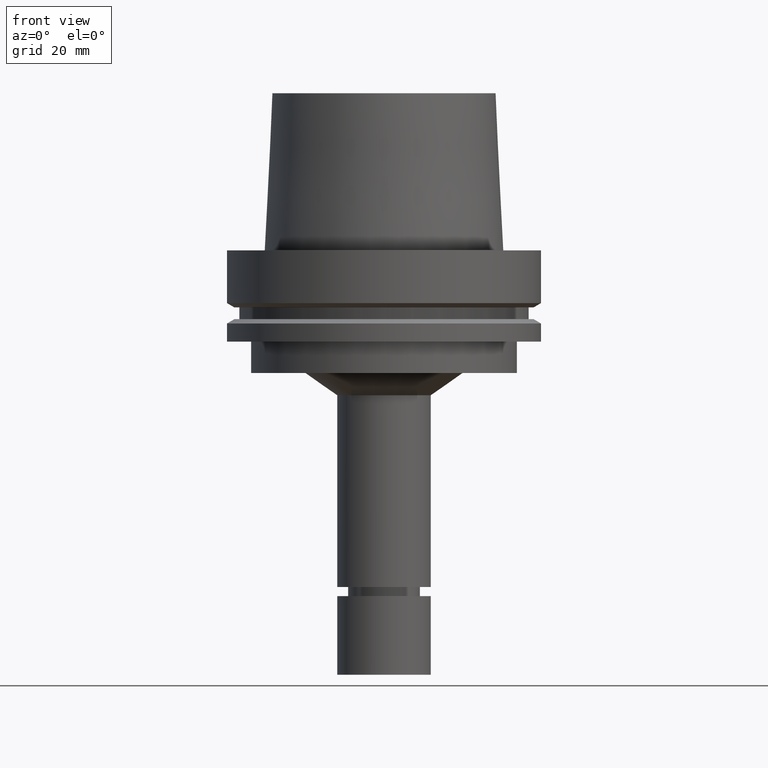
[diagram: clean part render]
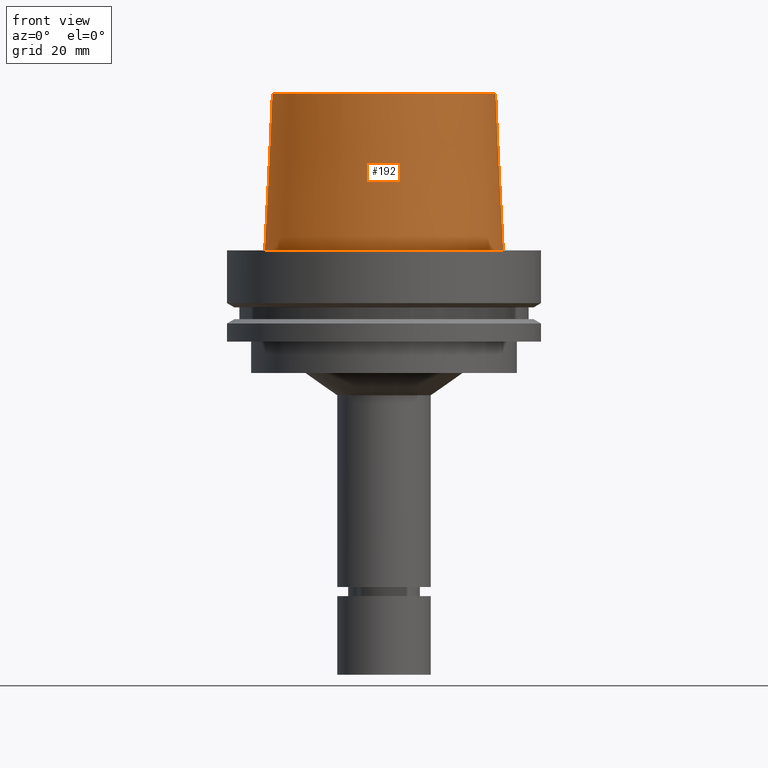
[diagram: same view with one face highlighted and labeled with its STEP entity id]
A machine part, front view. The second image highlights one B-rep face of the part: STEP entity #192.
In plain terms, the highlighted conical surface has half-angle 2.862 deg.
Its self-contained STEP definition (entity closure, byte-faithful):
#136=EDGE_CURVE('Unnamed[1]',#304,#304,#305,.T.);
#161=EDGE_CURVE('Unnamed[1]',#343,#343,#344,.T.);
#192=ADVANCED_FACE('Unnamed[1]',(#391,#392),#393,.T.);
#304=VERTEX_POINT('',#525);
#305=CIRCLE('',#526,37.9999999999349);
#343=VERTEX_POINT('',#573);
#344=CIRCLE('',#574,35.5000000015618);
#391=FACE_BOUND('',#633,.T.);
#392=FACE_BOUND('',#634,.T.);
#393=CONICAL_SURFACE('',#635,36.7500000007484,0.0499583956894843);
#525=CARTESIAN_POINT('',(-3.3636548776863E-032,37.9999999999349,-2.44634216324803E-015));
#526=AXIS2_PLACEMENT_3D('',#740,#741,#742);
#573=CARTESIAN_POINT('',(-3.06161699786838E-015,35.5000000015618,50.0));
#574=AXIS2_PLACEMENT_3D('',#786,#787,#788);
#633=EDGE_LOOP('',(#840));
#634=EDGE_LOOP('',(#841));
#635=AXIS2_PLACEMENT_3D('',#842,#843,#844);
#740=CARTESIAN_POINT('',(0.0,0.0,0.0));
#741=DIRECTION('',(6.12323399573677E-017,1.22464679914704E-016,-1.0));
#742=DIRECTION('',(-1.23259516440805E-032,1.0,1.22464679914704E-016));
#786=CARTESIAN_POINT('',(-3.06161699786838E-015,-6.12323399573676E-015,50.0));
#787=DIRECTION('',(6.12323399573677E-017,1.22464679914683E-016,-1.0));
#788=DIRECTION('',(-1.23259516440817E-032,1.0,1.22464679914683E-016));
#840=ORIENTED_EDGE('',*,*,#136,.F.);
#841=ORIENTED_EDGE('',*,*,#161,.T.);
#842=CARTESIAN_POINT('',(-1.53080849893419E-015,-3.06161699786838E-015,25.0));
#843=DIRECTION('',(6.12323399573676E-017,1.22464679914694E-016,-1.0));
#844=DIRECTION('',(-1.23259516440811E-032,1.0,1.22464679914694E-016));